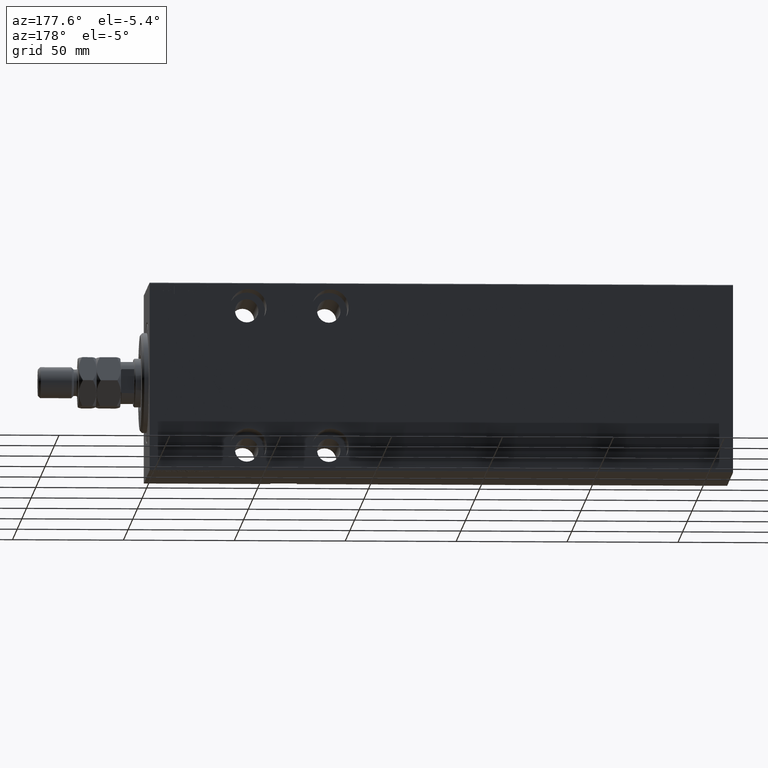
[diagram: clean part render]
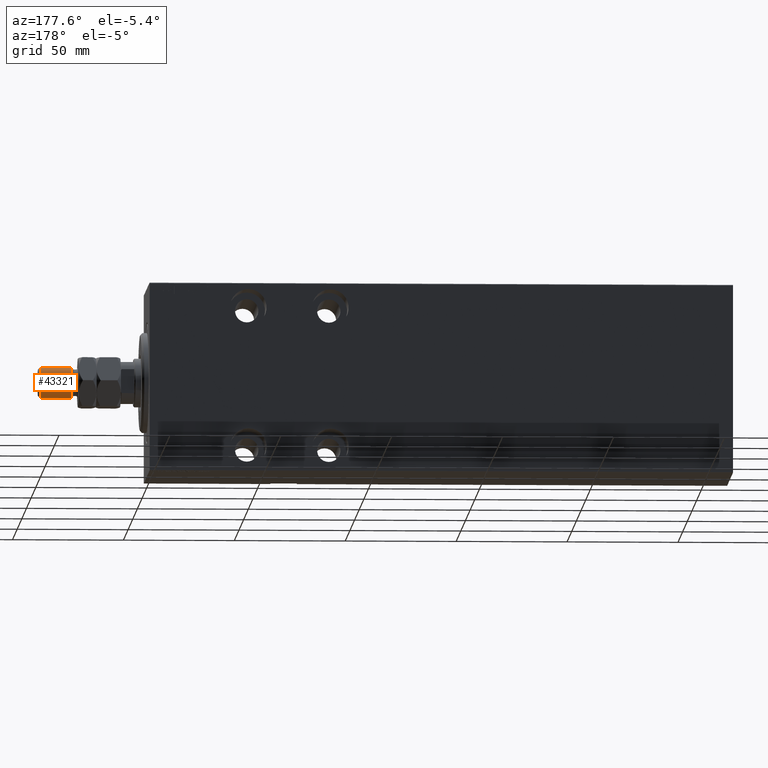
[diagram: same view with one face highlighted and labeled with its STEP entity id]
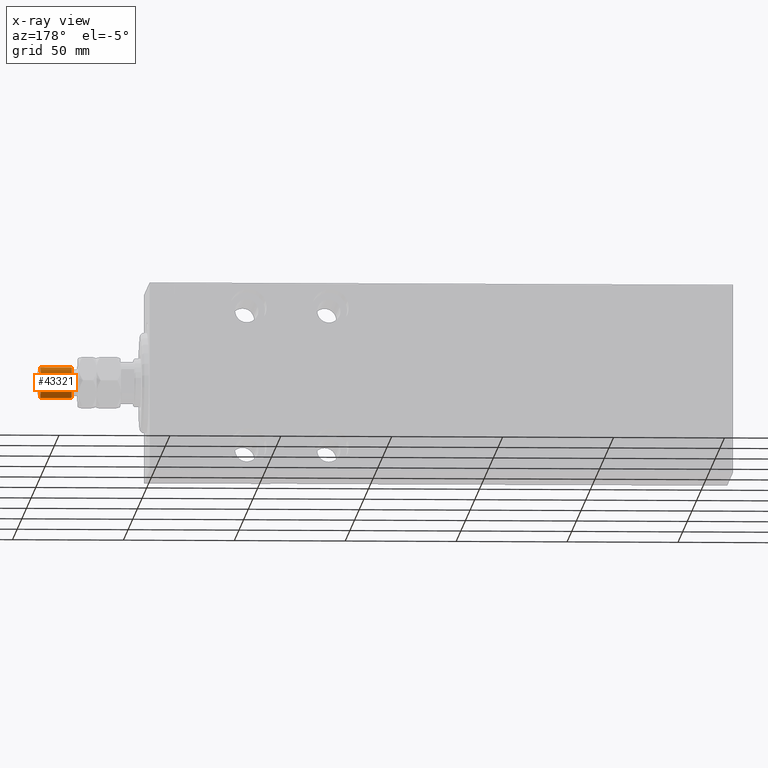
[diagram: x-ray of the same camera — body ghosted, the highlighted face saturated]
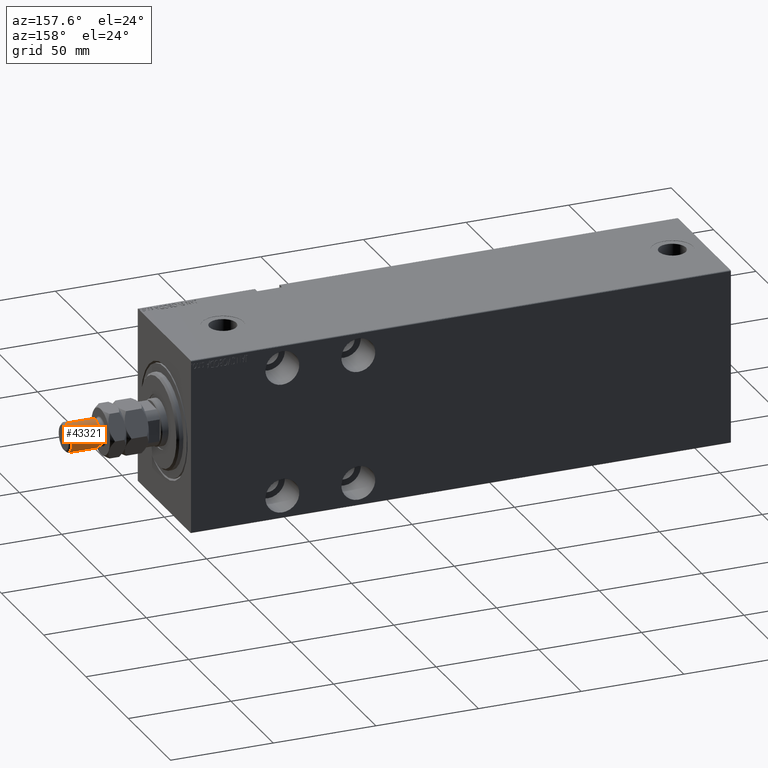
[diagram: same view with one face highlighted and labeled with its STEP entity id]
A machine part, auxiliary view. The second image highlights one B-rep face of the part: STEP entity #43321.
The next image is the same camera in x-ray: the body ghosted, the highlighted face saturated — about 0% of this face is hidden behind the body in this view.
A second angle (auxiliary view) of the same face is appended — the face is thin or edge-on in the first view.
In plain terms, the highlighted cylindrical surface (edge-blend (fillet) strip) has radius 7 mm, axis along (-1, -0, 0).
Its self-contained STEP definition (entity closure, byte-faithful):
#310 = EDGE_CURVE ( 'NONE', #44805, #25950, #12604, .T. ) ;
#474 = LINE ( 'NONE', #14502, #9796 ) ;
#2830 = DIRECTION ( 'NONE',  ( 0.000000000000000000, 0.000000000000000000, -1.000000000000000000 ) ) ;
#5889 = CIRCLE ( 'NONE', #30883, 7.000000000000000000 ) ;
#7865 = VECTOR ( 'NONE', #44833, 1000.000000000000000 ) ;
#8378 = EDGE_CURVE ( 'NONE', #23143, #25950, #5889, .T. ) ;
#9251 = CARTESIAN_POINT ( 'NONE',  ( 7.000000000000000000, 8.572527594031473190E-16, 22.00000000000000355 ) ) ;
#9407 = DIRECTION ( 'NONE',  ( 1.000000000000000000, 0.000000000000000000, 0.000000000000000000 ) ) ;
#9796 = VECTOR ( 'NONE', #18656, 1000.000000000000000 ) ;
#12604 = LINE ( 'NONE', #33580, #7865 ) ;
#14502 = CARTESIAN_POINT ( 'NONE',  ( 7.000000000000000000, 8.572527594031473190E-16, 37.00000000000000000 ) ) ;
#15161 = DIRECTION ( 'NONE',  ( -0.000000000000000000, -0.000000000000000000, -1.000000000000000000 ) ) ;
#15615 = CARTESIAN_POINT ( 'NONE',  ( 0.000000000000000000, 0.000000000000000000, 37.00000000000000000 ) ) ;
#16337 = DIRECTION ( 'NONE',  ( -0.000000000000000000, -0.000000000000000000, 1.000000000000000000 ) ) ;
#16557 = CARTESIAN_POINT ( 'NONE',  ( 0.000000000000000000, 0.000000000000000000, 22.00000000000000355 ) ) ;
#17506 = ORIENTED_EDGE ( 'NONE', *, *, #18518, .T. ) ;
#18518 = EDGE_CURVE ( 'NONE', #44805, #28932, #27355, .T. ) ;
#18656 = DIRECTION ( 'NONE',  ( -0.000000000000000000, -0.000000000000000000, -1.000000000000000000 ) ) ;
#21777 = EDGE_LOOP ( 'NONE', ( #17506, #24194, #26278, #36928 ) ) ;
#21839 = CYLINDRICAL_SURFACE ( 'NONE', #41566, 7.000000000000000000 ) ;
#23143 = VERTEX_POINT ( 'NONE', #9251 ) ;
#24194 = ORIENTED_EDGE ( 'NONE', *, *, #37943, .T. ) ;
#24310 = CARTESIAN_POINT ( 'NONE',  ( -7.000000000000000000, 0.000000000000000000, 22.00000000000000355 ) ) ;
#25950 = VERTEX_POINT ( 'NONE', #24310 ) ;
#26278 = ORIENTED_EDGE ( 'NONE', *, *, #8378, .T. ) ;
#26320 = DIRECTION ( 'NONE',  ( 1.000000000000000000, 0.000000000000000000, 0.000000000000000000 ) ) ;
#26419 = FACE_OUTER_BOUND ( 'NONE', #21777, .T. ) ;
#27355 = CIRCLE ( 'NONE', #28839, 7.000000000000000000 ) ;
#28839 = AXIS2_PLACEMENT_3D ( 'NONE', #34385, #2830, #26320 ) ;
#28932 = VERTEX_POINT ( 'NONE', #31569 ) ;
#30695 = CARTESIAN_POINT ( 'NONE',  ( -7.000000000000000000, 0.000000000000000000, 35.99999999999999289 ) ) ;
#30883 = AXIS2_PLACEMENT_3D ( 'NONE', #16557, #16337, #9407 ) ;
#31569 = CARTESIAN_POINT ( 'NONE',  ( 7.000000000000000000, 8.572527594031473190E-16, 35.99999999999999289 ) ) ;
#33580 = CARTESIAN_POINT ( 'NONE',  ( -7.000000000000000000, 0.000000000000000000, 37.00000000000000000 ) ) ;
#34385 = CARTESIAN_POINT ( 'NONE',  ( 0.000000000000000000, 0.000000000000000000, 35.99999999999999289 ) ) ;
#36928 = ORIENTED_EDGE ( 'NONE', *, *, #310, .F. ) ;
#37943 = EDGE_CURVE ( 'NONE', #28932, #23143, #474, .T. ) ;
#40037 = DIRECTION ( 'NONE',  ( -1.000000000000000000, 0.000000000000000000, 0.000000000000000000 ) ) ;
#41566 = AXIS2_PLACEMENT_3D ( 'NONE', #15615, #15161, #40037 ) ;
#43321 = ADVANCED_FACE ( 'NONE', ( #26419 ), #21839, .T. ) ;
#44805 = VERTEX_POINT ( 'NONE', #30695 ) ;
#44833 = DIRECTION ( 'NONE',  ( -0.000000000000000000, -0.000000000000000000, -1.000000000000000000 ) ) ;